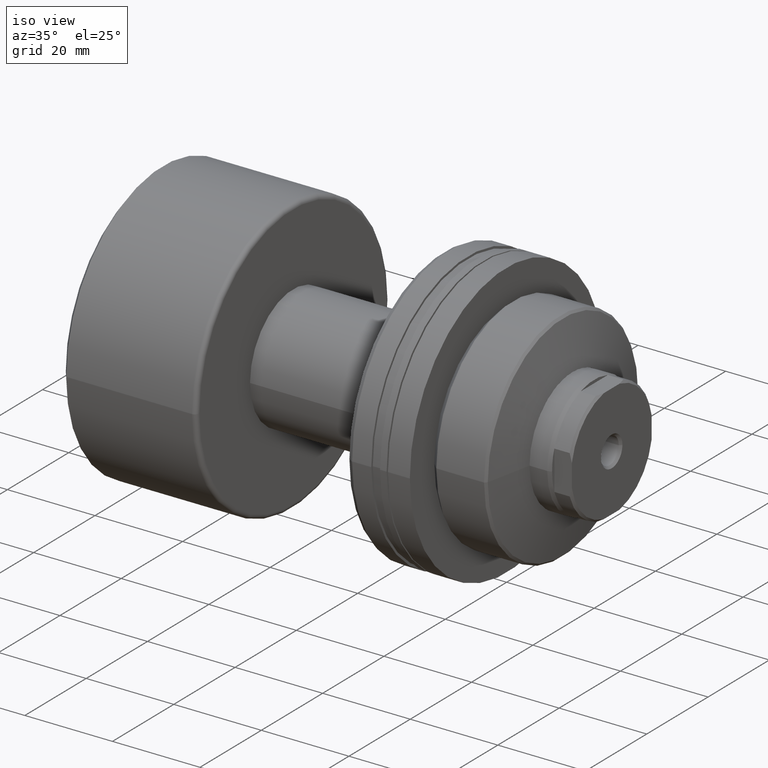
[diagram: clean part render]
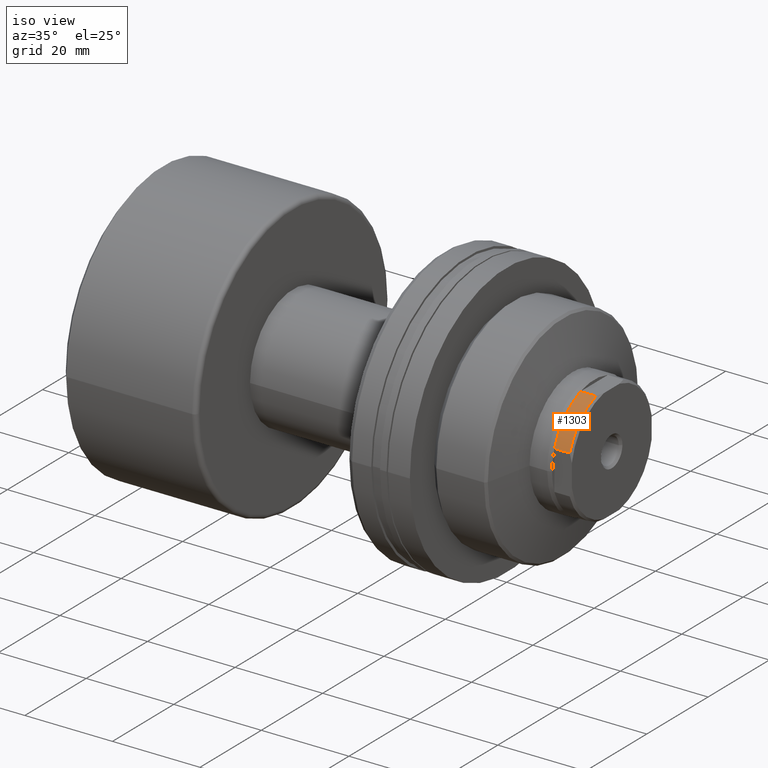
[diagram: same view with one face highlighted and labeled with its STEP entity id]
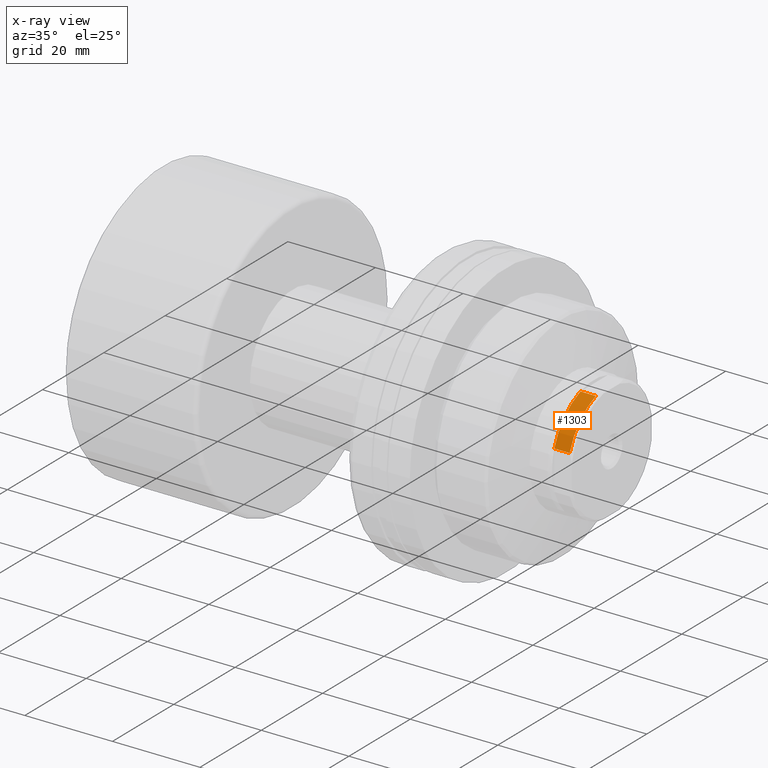
[diagram: x-ray of the same camera — body ghosted, the highlighted face saturated]
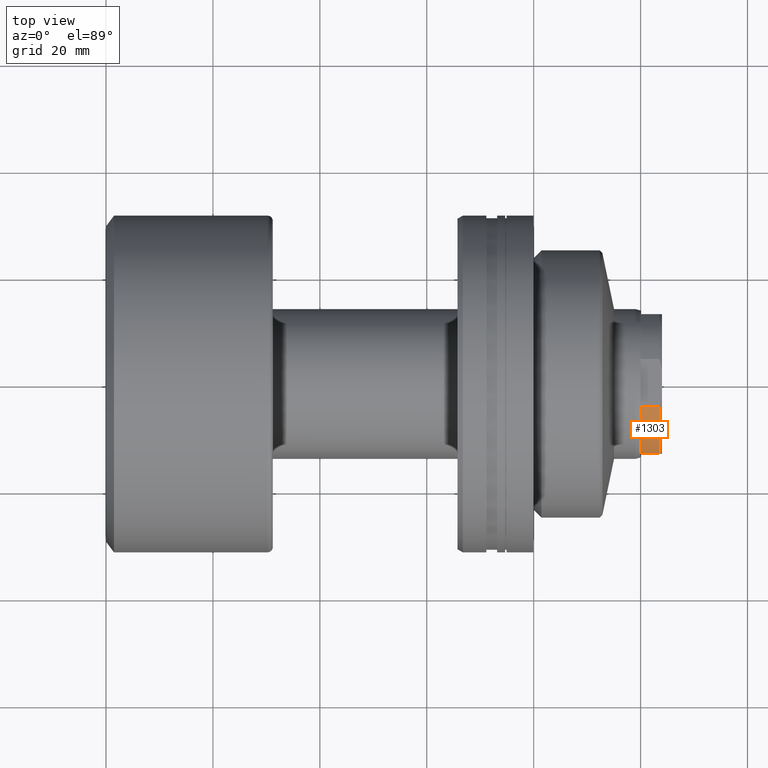
[diagram: same view with one face highlighted and labeled with its STEP entity id]
A machine part, iso view. The second image highlights one B-rep face of the part: STEP entity #1303.
The next image is the same camera in x-ray: the body ghosted, the highlighted face saturated — about 0% of this face is hidden behind the body in this view.
A second angle (top view) of the same face is appended — the face is thin or edge-on in the first view.
In plain terms, the highlighted cylindrical surface (partial cylindrical patch) has radius 13.75 mm, axis along (-1, -0, -0).
Its self-contained STEP definition (entity closure, byte-faithful):
#205 = DIRECTION ( 'NONE',  ( -1.000000000000000000, -1.069542322069054245E-17, -0.000000000000000000 ) ) ;
#273 = EDGE_CURVE ( 'NONE', #2211, #615, #1849, .T. ) ;
#298 = AXIS2_PLACEMENT_3D ( 'NONE', #1658, #205, #924 ) ;
#341 = LINE ( 'NONE', #758, #643 ) ;
#403 = ORIENTED_EDGE ( 'NONE', *, *, #273, .T. ) ;
#426 = CARTESIAN_POINT ( 'NONE',  ( 103.5000000000000142, -4.479118216794137020, 13.00000000000052935 ) ) ;
#430 = CARTESIAN_POINT ( 'NONE',  ( 99.99999999999978684, -13.00000000000112621, 4.479118216795496821 ) ) ;
#515 = CARTESIAN_POINT ( 'NONE',  ( 100.0000000000001421, 1.069542322069067372E-15, 0.000000000000000000 ) ) ;
#536 = EDGE_CURVE ( 'NONE', #1292, #615, #601, .T. ) ;
#601 = LINE ( 'NONE', #1443, #679 ) ;
#615 = VERTEX_POINT ( 'NONE', #426 ) ;
#643 = VECTOR ( 'NONE', #1627, 1000.000000000000000 ) ;
#674 = DIRECTION ( 'NONE',  ( 1.069542322069065801E-17, -1.000000000000000000, 0.000000000000000000 ) ) ;
#679 = VECTOR ( 'NONE', #2154, 1000.000000000000000 ) ;
#758 = CARTESIAN_POINT ( 'NONE',  ( 99.99999999999978684, -13.00000000000112621, 4.479118216795496821 ) ) ;
#923 = EDGE_CURVE ( 'NONE', #2162, #1292, #2227, .T. ) ;
#924 = DIRECTION ( 'NONE',  ( 0.000000000000000000, -1.000000000000000000, 0.000000000000000000 ) ) ;
#976 = EDGE_LOOP ( 'NONE', ( #1624, #403, #2263, #1048 ) ) ;
#1042 = AXIS2_PLACEMENT_3D ( 'NONE', #515, #1046, #1723 ) ;
#1046 = DIRECTION ( 'NONE',  ( -1.000000000000000000, -1.069542322069065801E-17, -0.000000000000000000 ) ) ;
#1048 = ORIENTED_EDGE ( 'NONE', *, *, #923, .F. ) ;
#1292 = VERTEX_POINT ( 'NONE', #1310 ) ;
#1303 = ADVANCED_FACE ( 'NONE', ( #1657 ), #1389, .T. ) ;
#1310 = CARTESIAN_POINT ( 'NONE',  ( 99.99999999999994316, -4.479118216794079288, 13.00000000000052935 ) ) ;
#1362 = AXIS2_PLACEMENT_3D ( 'NONE', #2100, #1410, #674 ) ;
#1389 = CYLINDRICAL_SURFACE ( 'NONE', #1362, 13.75000000000000178 ) ;
#1410 = DIRECTION ( 'NONE',  ( -1.000000000000000000, -1.069542322069065801E-17, -0.000000000000000000 ) ) ;
#1443 = CARTESIAN_POINT ( 'NONE',  ( 99.99999999999994316, -4.479118216794079288, 13.00000000000052935 ) ) ;
#1624 = ORIENTED_EDGE ( 'NONE', *, *, #2220, .T. ) ;
#1627 = DIRECTION ( 'NONE',  ( 1.000000000000000000, -1.657264799492230625E-14, -0.000000000000000000 ) ) ;
#1657 = FACE_OUTER_BOUND ( 'NONE', #976, .T. ) ;
#1658 = CARTESIAN_POINT ( 'NONE',  ( 103.5000000000000142, 1.106976303341483222E-15, 0.000000000000000000 ) ) ;
#1723 = DIRECTION ( 'NONE',  ( 0.000000000000000000, -1.000000000000000000, 0.000000000000000000 ) ) ;
#1849 = CIRCLE ( 'NONE', #298, 13.75000000000000178 ) ;
#2038 = CARTESIAN_POINT ( 'NONE',  ( 103.5000000000000142, -13.00000000000118483, 4.479118216795496821 ) ) ;
#2100 = CARTESIAN_POINT ( 'NONE',  ( 0.000000000000000000, 0.000000000000000000, 0.000000000000000000 ) ) ;
#2154 = DIRECTION ( 'NONE',  ( 1.000000000000000000, -1.657264799492230625E-14, -0.000000000000000000 ) ) ;
#2162 = VERTEX_POINT ( 'NONE', #430 ) ;
#2211 = VERTEX_POINT ( 'NONE', #2038 ) ;
#2220 = EDGE_CURVE ( 'NONE', #2162, #2211, #341, .T. ) ;
#2227 = CIRCLE ( 'NONE', #1042, 13.75000000000000178 ) ;
#2263 = ORIENTED_EDGE ( 'NONE', *, *, #536, .F. ) ;